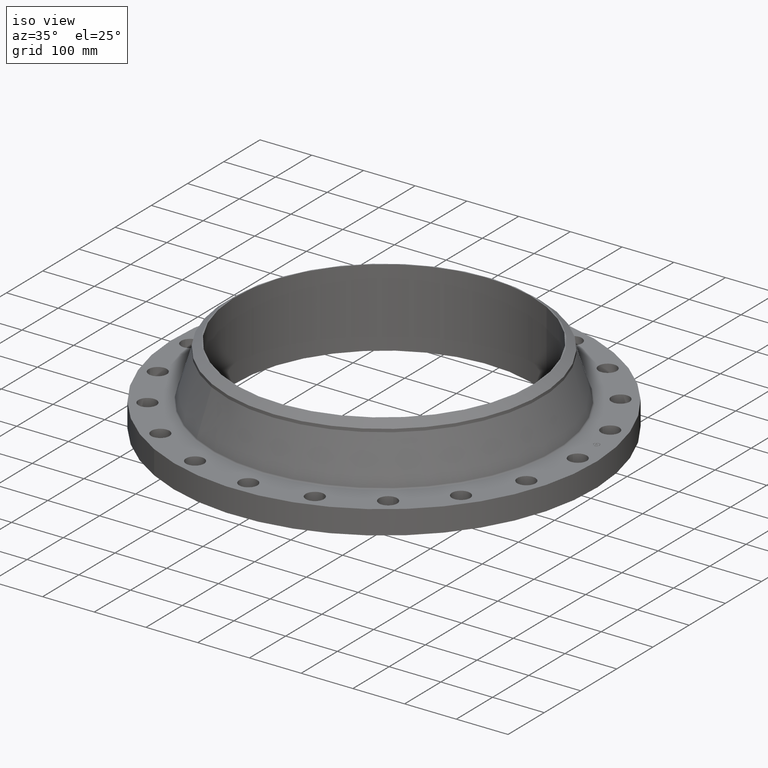
[diagram: clean part render]
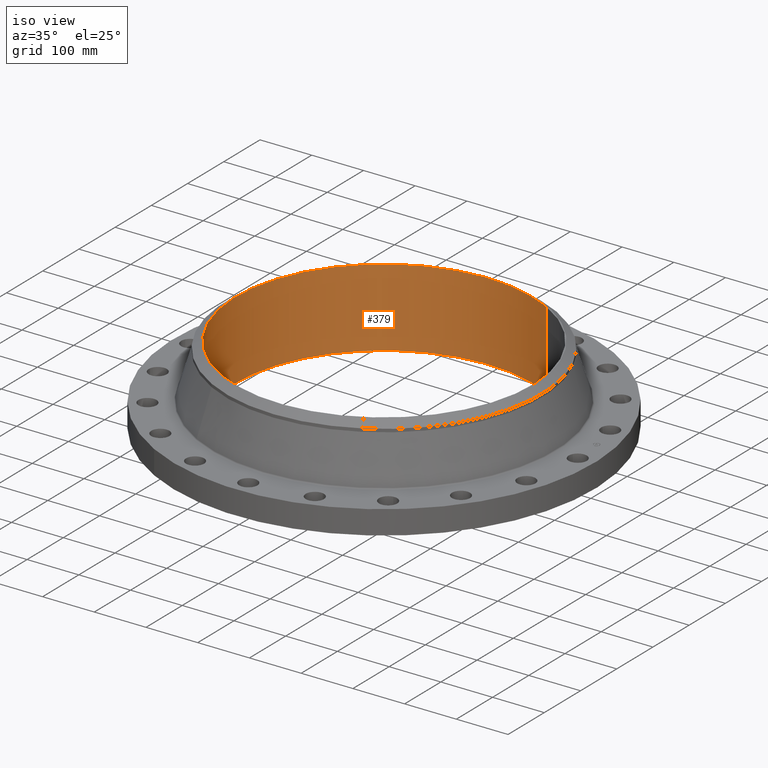
[diagram: tour spotlight — one face highlighted and labeled with its STEP entity id]
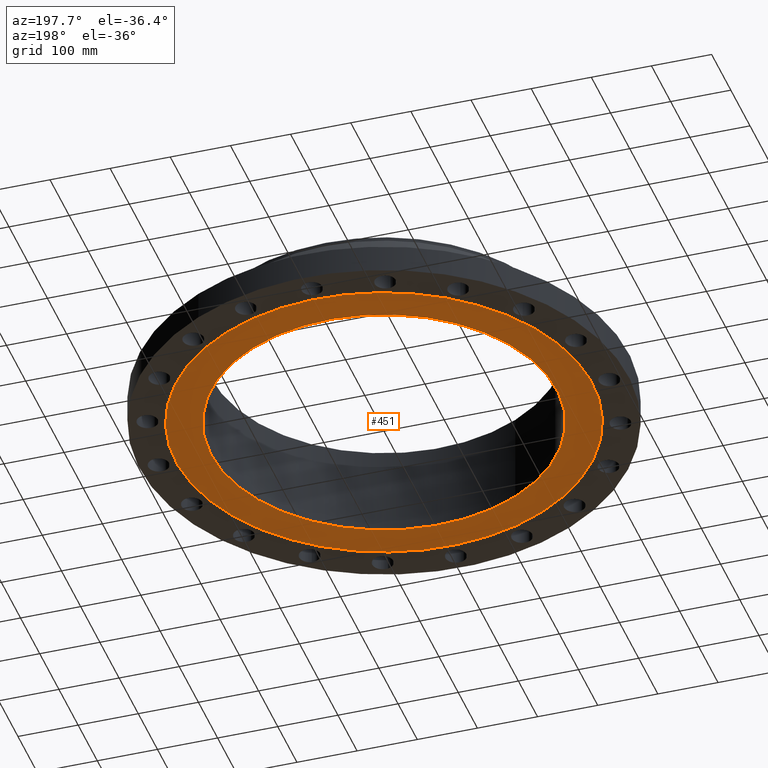
[diagram: tour spotlight — one face highlighted and labeled with its STEP entity id]
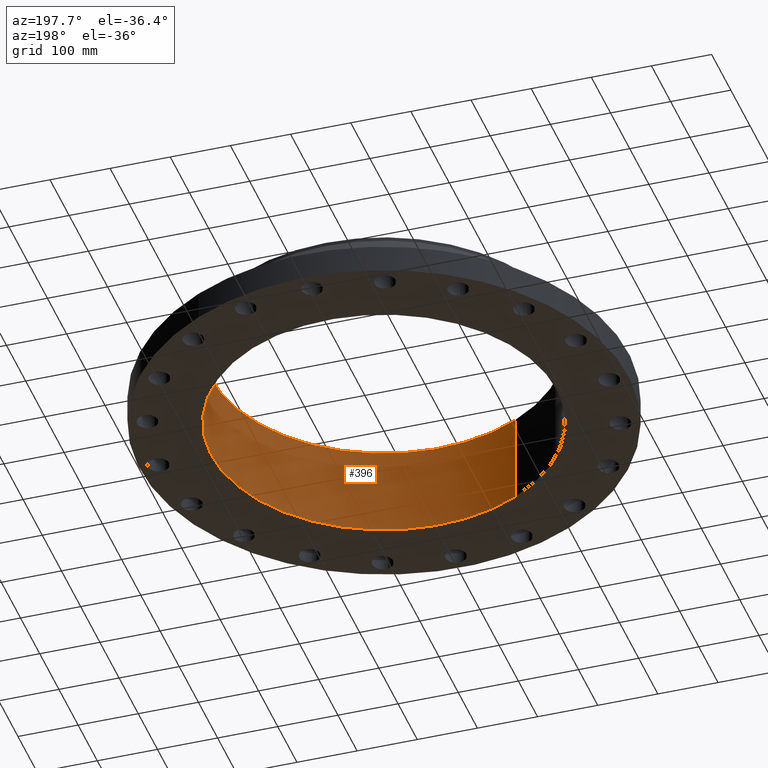
[diagram: tour spotlight — one face highlighted and labeled with its STEP entity id]
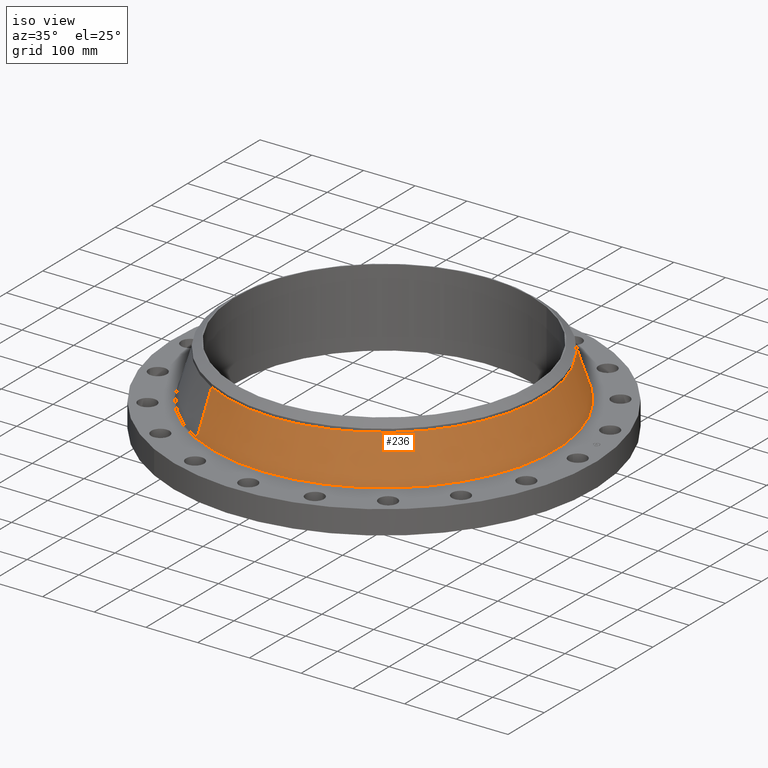
[diagram: tour spotlight — one face highlighted and labeled with its STEP entity id]
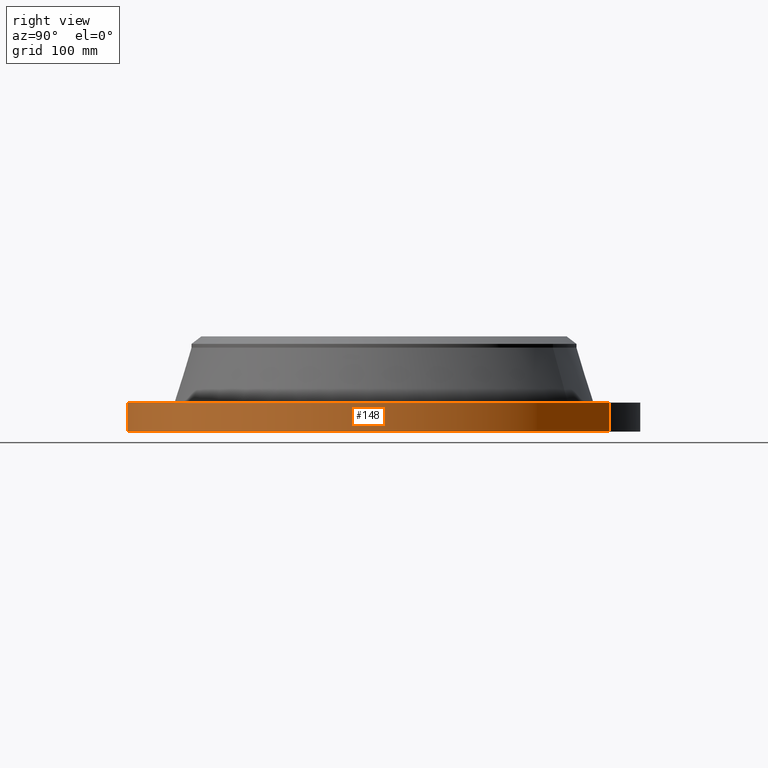
[diagram: tour spotlight — one face highlighted and labeled with its STEP entity id]
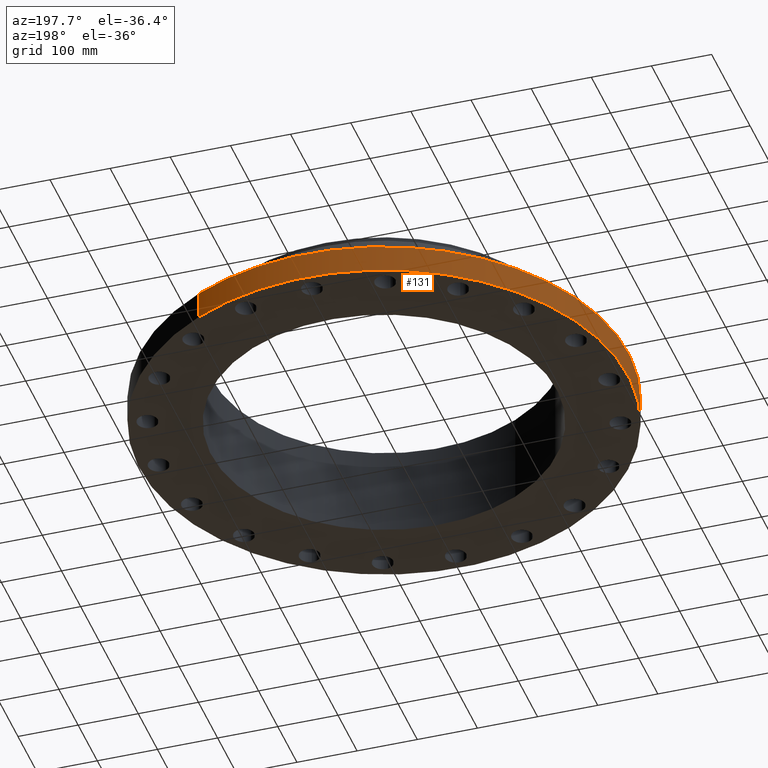
[diagram: tour spotlight — one face highlighted and labeled with its STEP entity id]
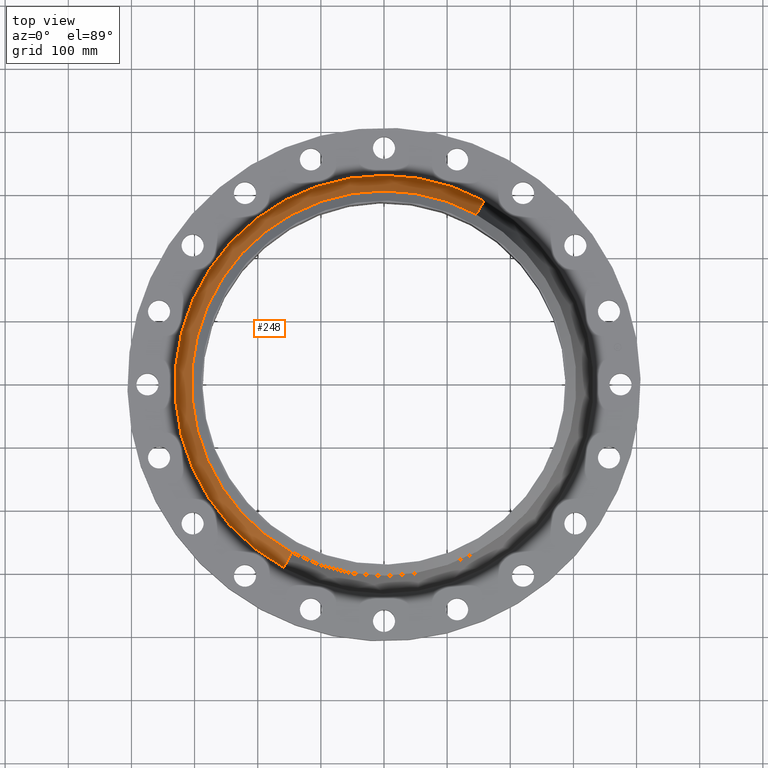
[diagram: tour spotlight — one face highlighted and labeled with its STEP entity id]
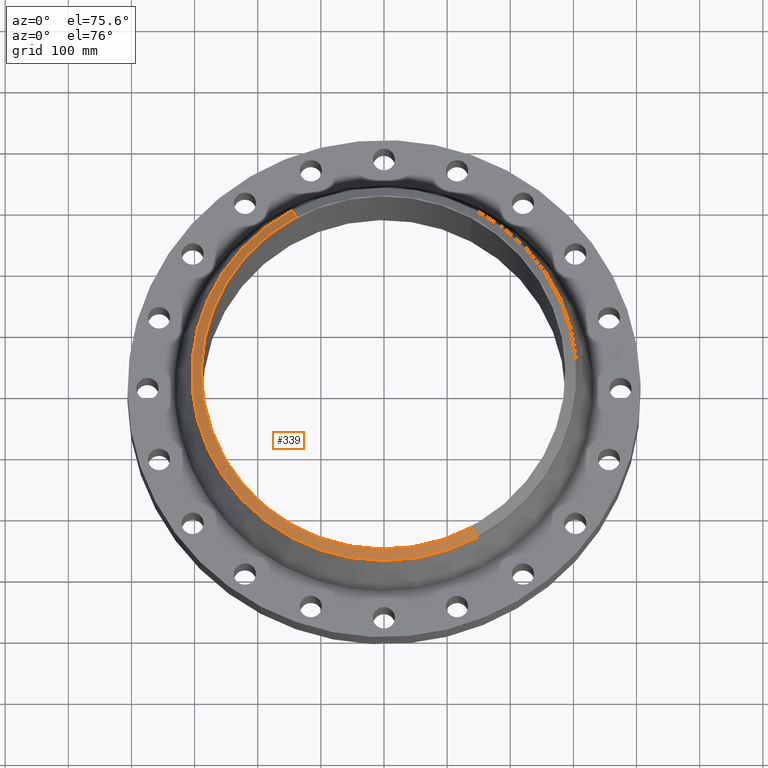
[diagram: tour spotlight — one face highlighted and labeled with its STEP entity id]
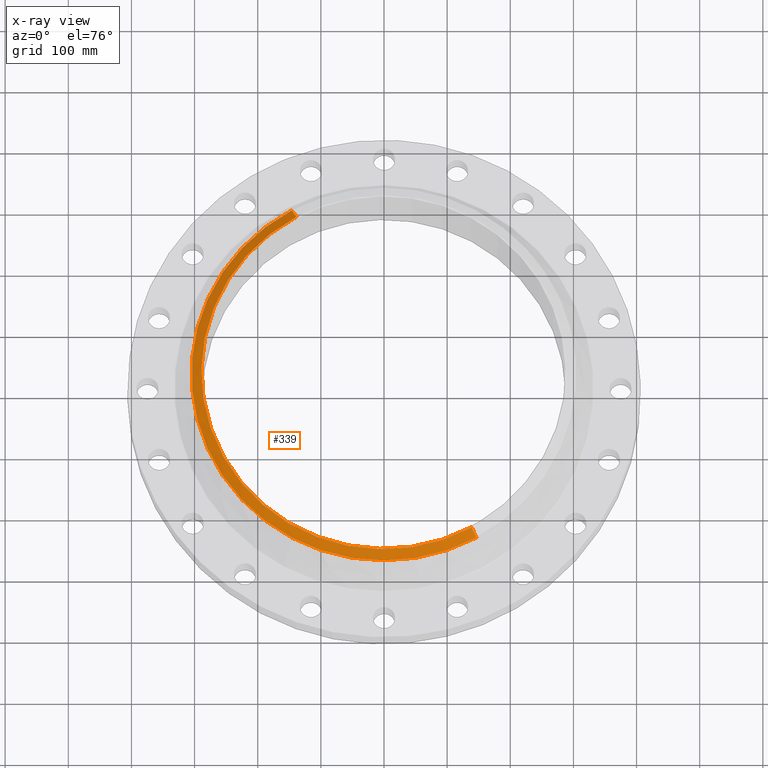
[diagram: x-ray of the same camera — body ghosted, this tour face saturated]
A machine part: a face-by-face anatomy tour. The part has 441 B-rep faces; the first image is the clean iso view, then the 8 largest visible faces are spotlighted one at a time (largest first), each with its STEP entity span.

Face 1 — iso view, entity #379. In plain terms, the highlighted cylindrical surface (partial cylindrical patch) has radius 287.325 mm, axis along (0, 0, -1).
Definition (entity closure, byte-faithful):
#343=AXIS2_PLACEMENT_3D('Cylinder Axis2P3D',#340,#341,#342) ;
#347=AXIS2_PLACEMENT_3D('Circle Axis2P3D',#345,#346,$) ;
#363=AXIS2_PLACEMENT_3D('Circle Axis2P3D',#361,#362,$) ;
#340=CARTESIAN_POINT('Axis2P3D Location',(0.,0.,2.97000000001)) ;
#345=CARTESIAN_POINT('Axis2P3D Location',(0.,0.,5.94000000002)) ;
#349=CARTESIAN_POINT('Vertex',(-5.42326169271,-9.92721394014,5.94000000002)) ;
#351=CARTESIAN_POINT('Vertex',(5.42326169271,9.92721394014,5.94000000002)) ;
#354=CARTESIAN_POINT('Line Origine',(-5.42326169271,-9.92721394014,2.97000000001)) ;
#358=CARTESIAN_POINT('Vertex',(-5.42326169271,-9.92721394014,-8.28034054272E-014)) ;
#361=CARTESIAN_POINT('Axis2P3D Location',(0.,0.,-8.28034054272E-014)) ;
#365=CARTESIAN_POINT('Vertex',(5.42326169271,9.92721394014,-8.28034054272E-014)) ;
#368=CARTESIAN_POINT('Line Origine',(5.42326169271,9.92721394014,2.97000000001)) ;
#341=DIRECTION('Axis2P3D Direction',(0.,0.,-0.0393700787402)) ;
#342=DIRECTION('Axis2P3D XDirection',(0.0188750212049,0.0345504945626,0.)) ;
#346=DIRECTION('Axis2P3D Direction',(0.,0.,-0.0393700787402)) ;
#355=DIRECTION('Vector Direction',(0.,0.,-0.0393700787402)) ;
#362=DIRECTION('Axis2P3D Direction',(0.,0.,-0.0393700787402)) ;
#369=DIRECTION('Vector Direction',(0.,0.,-0.0393700787402)) ;
#356=VECTOR('Line Direction',#355,0.0393700787402) ;
#370=VECTOR('Line Direction',#369,0.0393700787402) ;
#374=ORIENTED_EDGE('',*,*,#353,.F.) ;
#375=ORIENTED_EDGE('',*,*,#360,.T.) ;
#376=ORIENTED_EDGE('',*,*,#367,.T.) ;
#377=ORIENTED_EDGE('',*,*,#372,.F.) ;
#379=ADVANCED_FACE('PartBody',(#378),#344,.F.) ;
#348=CIRCLE('generated circle',#347,11.312) ;
#364=CIRCLE('generated circle',#363,11.312) ;
#344=CYLINDRICAL_SURFACE('generated cylinder',#343,11.312) ;
#353=EDGE_CURVE('',#350,#352,#348,.T.) ;
#360=EDGE_CURVE('',#350,#359,#357,.T.) ;
#367=EDGE_CURVE('',#359,#366,#364,.T.) ;
#372=EDGE_CURVE('',#352,#366,#371,.T.) ;
#373=EDGE_LOOP('',(#374,#375,#376,#377)) ;
#378=FACE_OUTER_BOUND('',#373,.T.) ;
#357=LINE('Line',#354,#356) ;
#371=LINE('Line',#368,#370) ;
#350=VERTEX_POINT('',#349) ;
#352=VERTEX_POINT('',#351) ;
#359=VERTEX_POINT('',#358) ;
#366=VERTEX_POINT('',#365) ;

Face 2 — auxiliary view, entity #451. In plain terms, the highlighted planar face has unit normal (0, 0, -1).
Definition (entity closure, byte-faithful):
#363=AXIS2_PLACEMENT_3D('Circle Axis2P3D',#361,#362,$) ;
#387=AXIS2_PLACEMENT_3D('Circle Axis2P3D',#385,#386,$) ;
#427=AXIS2_PLACEMENT_3D('Plane Axis2P3D',#424,#425,#426) ;
#431=AXIS2_PLACEMENT_3D('Circle Axis2P3D',#429,#430,$) ;
#440=AXIS2_PLACEMENT_3D('Circle Axis2P3D',#438,#439,$) ;
#358=CARTESIAN_POINT('Vertex',(-5.42326169271,-9.92721394014,-8.28034054272E-014)) ;
#361=CARTESIAN_POINT('Axis2P3D Location',(0.,0.,-8.28034054272E-014)) ;
#365=CARTESIAN_POINT('Vertex',(5.42326169271,9.92721394014,-8.28034054272E-014)) ;
#385=CARTESIAN_POINT('Axis2P3D Location',(0.,0.,-8.28034054272E-014)) ;
#424=CARTESIAN_POINT('Axis2P3D Location',(0.,11.312,0.)) ;
#429=CARTESIAN_POINT('Axis2P3D Location',(0.,0.,0.)) ;
#433=CARTESIAN_POINT('Vertex',(-6.53217296351,-11.9570624058,0.)) ;
#435=CARTESIAN_POINT('Vertex',(6.53217296351,11.9570624058,0.)) ;
#438=CARTESIAN_POINT('Axis2P3D Location',(0.,0.,0.)) ;
#362=DIRECTION('Axis2P3D Direction',(0.,0.,-0.0393700787402)) ;
#386=DIRECTION('Axis2P3D Direction',(0.,0.,-0.0393700787402)) ;
#425=DIRECTION('Axis2P3D Direction',(0.,0.,-0.0393700787402)) ;
#426=DIRECTION('Axis2P3D XDirection',(0.0393700787402,0.,0.)) ;
#430=DIRECTION('Axis2P3D Direction',(0.,0.,-0.0393700787402)) ;
#439=DIRECTION('Axis2P3D Direction',(0.,0.,-0.0393700787402)) ;
#444=ORIENTED_EDGE('',*,*,#437,.T.) ;
#445=ORIENTED_EDGE('',*,*,#442,.T.) ;
#448=ORIENTED_EDGE('',*,*,#389,.F.) ;
#449=ORIENTED_EDGE('',*,*,#367,.F.) ;
#450=FACE_BOUND('',#447,.T.) ;
#451=ADVANCED_FACE('PartBody',(#446,#450),#428,.T.) ;
#364=CIRCLE('generated circle',#363,11.312) ;
#388=CIRCLE('generated circle',#387,11.312) ;
#432=CIRCLE('generated circle',#431,13.6250000001) ;
#441=CIRCLE('generated circle',#440,13.6250000001) ;
#367=EDGE_CURVE('',#359,#366,#364,.T.) ;
#389=EDGE_CURVE('',#366,#359,#388,.T.) ;
#437=EDGE_CURVE('',#434,#436,#432,.T.) ;
#442=EDGE_CURVE('',#436,#434,#441,.T.) ;
#443=EDGE_LOOP('',(#444,#445)) ;
#447=EDGE_LOOP('',(#448,#449)) ;
#446=FACE_OUTER_BOUND('',#443,.T.) ;
#428=PLANE('',#427) ;
#359=VERTEX_POINT('',#358) ;
#366=VERTEX_POINT('',#365) ;
#434=VERTEX_POINT('',#433) ;
#436=VERTEX_POINT('',#435) ;

Face 3 — auxiliary view, entity #396. In plain terms, the highlighted cylindrical surface (partial cylindrical patch) has radius 287.325 mm, axis along (0, 0, -1).
Definition (entity closure, byte-faithful):
#343=AXIS2_PLACEMENT_3D('Cylinder Axis2P3D',#340,#341,#342) ;
#382=AXIS2_PLACEMENT_3D('Circle Axis2P3D',#380,#381,$) ;
#387=AXIS2_PLACEMENT_3D('Circle Axis2P3D',#385,#386,$) ;
#340=CARTESIAN_POINT('Axis2P3D Location',(0.,0.,2.97000000001)) ;
#349=CARTESIAN_POINT('Vertex',(-5.42326169271,-9.92721394014,5.94000000002)) ;
#351=CARTESIAN_POINT('Vertex',(5.42326169271,9.92721394014,5.94000000002)) ;
#354=CARTESIAN_POINT('Line Origine',(-5.42326169271,-9.92721394014,2.97000000001)) ;
#358=CARTESIAN_POINT('Vertex',(-5.42326169271,-9.92721394014,-8.28034054272E-014)) ;
#365=CARTESIAN_POINT('Vertex',(5.42326169271,9.92721394014,-8.28034054272E-014)) ;
#368=CARTESIAN_POINT('Line Origine',(5.42326169271,9.92721394014,2.97000000001)) ;
#380=CARTESIAN_POINT('Axis2P3D Location',(0.,0.,5.94000000002)) ;
#385=CARTESIAN_POINT('Axis2P3D Location',(0.,0.,-8.28034054272E-014)) ;
#341=DIRECTION('Axis2P3D Direction',(0.,0.,-0.0393700787402)) ;
#342=DIRECTION('Axis2P3D XDirection',(0.0188750212049,0.0345504945626,0.)) ;
#355=DIRECTION('Vector Direction',(0.,0.,-0.0393700787402)) ;
#369=DIRECTION('Vector Direction',(0.,0.,-0.0393700787402)) ;
#381=DIRECTION('Axis2P3D Direction',(0.,0.,-0.0393700787402)) ;
#386=DIRECTION('Axis2P3D Direction',(0.,0.,-0.0393700787402)) ;
#356=VECTOR('Line Direction',#355,0.0393700787402) ;
#370=VECTOR('Line Direction',#369,0.0393700787402) ;
#391=ORIENTED_EDGE('',*,*,#384,.F.) ;
#392=ORIENTED_EDGE('',*,*,#372,.T.) ;
#393=ORIENTED_EDGE('',*,*,#389,.T.) ;
#394=ORIENTED_EDGE('',*,*,#360,.F.) ;
#396=ADVANCED_FACE('PartBody',(#395),#344,.F.) ;
#383=CIRCLE('generated circle',#382,11.312) ;
#388=CIRCLE('generated circle',#387,11.312) ;
#344=CYLINDRICAL_SURFACE('generated cylinder',#343,11.312) ;
#360=EDGE_CURVE('',#350,#359,#357,.T.) ;
#372=EDGE_CURVE('',#352,#366,#371,.T.) ;
#384=EDGE_CURVE('',#352,#350,#383,.T.) ;
#389=EDGE_CURVE('',#366,#359,#388,.T.) ;
#390=EDGE_LOOP('',(#391,#392,#393,#394)) ;
#395=FACE_OUTER_BOUND('',#390,.T.) ;
#357=LINE('Line',#354,#356) ;
#371=LINE('Line',#368,#370) ;
#350=VERTEX_POINT('',#349) ;
#352=VERTEX_POINT('',#351) ;
#359=VERTEX_POINT('',#358) ;
#366=VERTEX_POINT('',#365) ;

Face 4 — iso view, entity #236. In plain terms, the highlighted conical surface has half-angle 17.191 deg.
Definition (entity closure, byte-faithful):
#172=AXIS2_PLACEMENT_3D('Circle Axis2P3D',#170,#171,$) ;
#209=AXIS2_PLACEMENT_3D('Cone Axis2P3D',#206,#207,#208) ;
#220=AXIS2_PLACEMENT_3D('Circle Axis2P3D',#218,#219,$) ;
#167=CARTESIAN_POINT('Vertex',(6.24875936472,11.438277293,1.89453366619)) ;
#170=CARTESIAN_POINT('Axis2P3D Location',(0.,0.,1.89453366619)) ;
#174=CARTESIAN_POINT('Vertex',(-6.24875936472,-11.438277293,1.89453366619)) ;
#206=CARTESIAN_POINT('Axis2P3D Location',(0.,0.,5.23627800772)) ;
#211=CARTESIAN_POINT('Line Origine',(6.00093291399,10.9846340179,3.56540583695)) ;
#215=CARTESIAN_POINT('Vertex',(5.75310646327,10.5309907427,5.23627800772)) ;
#218=CARTESIAN_POINT('Axis2P3D Location',(0.,0.,5.23627800772)) ;
#222=CARTESIAN_POINT('Vertex',(-5.75310646327,-10.5309907427,5.23627800772)) ;
#225=CARTESIAN_POINT('Line Origine',(-6.00093291399,-10.9846340179,3.56540583695)) ;
#171=DIRECTION('Axis2P3D Direction',(0.,0.,-0.0393700787402)) ;
#207=DIRECTION('Axis2P3D Direction',(0.,0.,-0.0393700787402)) ;
#208=DIRECTION('Axis2P3D XDirection',(-0.0188750212049,-0.0345504945626,0.)) ;
#212=DIRECTION('Vector Direction',(0.00557856502444,0.010211494782,-0.0376112760564)) ;
#219=DIRECTION('Axis2P3D Direction',(0.,0.,-0.0393700787402)) ;
#226=DIRECTION('Vector Direction',(-0.00557856502444,-0.010211494782,-0.0376112760564)) ;
#213=VECTOR('Line Direction',#212,0.0393700787402) ;
#227=VECTOR('Line Direction',#226,0.0393700787402) ;
#231=ORIENTED_EDGE('',*,*,#176,.F.) ;
#232=ORIENTED_EDGE('',*,*,#217,.T.) ;
#233=ORIENTED_EDGE('',*,*,#224,.T.) ;
#234=ORIENTED_EDGE('',*,*,#229,.F.) ;
#236=ADVANCED_FACE('PartBody',(#235),#210,.T.) ;
#173=CIRCLE('generated circle',#172,13.0338475145) ;
#221=CIRCLE('generated circle',#220,12.) ;
#210=CONICAL_SURFACE('Cone',#209,12.,0.300034098303) ;
#176=EDGE_CURVE('',#168,#175,#173,.T.) ;
#217=EDGE_CURVE('',#168,#216,#214,.F.) ;
#224=EDGE_CURVE('',#216,#223,#221,.T.) ;
#229=EDGE_CURVE('',#175,#223,#228,.F.) ;
#230=EDGE_LOOP('',(#231,#232,#233,#234)) ;
#235=FACE_OUTER_BOUND('',#230,.T.) ;
#214=LINE('Line',#211,#213) ;
#228=LINE('Line',#225,#227) ;
#168=VERTEX_POINT('',#167) ;
#175=VERTEX_POINT('',#174) ;
#216=VERTEX_POINT('',#215) ;
#223=VERTEX_POINT('',#222) ;

Face 5 — right view, entity #148. In plain terms, the highlighted cylindrical surface (partial cylindrical patch) has radius 406.4 mm, axis along (0, 0, -1).
Definition (entity closure, byte-faithful):
#95=AXIS2_PLACEMENT_3D('Cylinder Axis2P3D',#92,#93,#94) ;
#134=AXIS2_PLACEMENT_3D('Circle Axis2P3D',#132,#133,$) ;
#139=AXIS2_PLACEMENT_3D('Circle Axis2P3D',#137,#138,$) ;
#92=CARTESIAN_POINT('Axis2P3D Location',(0.,0.,2.97000000001)) ;
#101=CARTESIAN_POINT('Vertex',(-7.6708086177,-14.0413209903,1.1189649382E-015)) ;
#103=CARTESIAN_POINT('Vertex',(7.6708086177,14.0413209903,1.1189649382E-015)) ;
#106=CARTESIAN_POINT('Line Origine',(-7.6708086177,-14.0413209903,0.905000000004)) ;
#110=CARTESIAN_POINT('Vertex',(-7.6708086177,-14.0413209903,1.81000000001)) ;
#117=CARTESIAN_POINT('Vertex',(7.6708086177,14.0413209903,1.81000000001)) ;
#120=CARTESIAN_POINT('Line Origine',(7.6708086177,14.0413209903,0.905000000004)) ;
#132=CARTESIAN_POINT('Axis2P3D Location',(0.,0.,1.1189649382E-015)) ;
#137=CARTESIAN_POINT('Axis2P3D Location',(0.,0.,1.81000000001)) ;
#93=DIRECTION('Axis2P3D Direction',(0.,0.,-0.0393700787402)) ;
#94=DIRECTION('Axis2P3D XDirection',(0.0188750212049,0.0345504945626,0.)) ;
#107=DIRECTION('Vector Direction',(0.,0.,-0.0393700787402)) ;
#121=DIRECTION('Vector Direction',(0.,0.,-0.0393700787402)) ;
#133=DIRECTION('Axis2P3D Direction',(0.,0.,-0.0393700787402)) ;
#138=DIRECTION('Axis2P3D Direction',(0.,0.,-0.0393700787402)) ;
#108=VECTOR('Line Direction',#107,0.0393700787402) ;
#122=VECTOR('Line Direction',#121,0.0393700787402) ;
#143=ORIENTED_EDGE('',*,*,#136,.F.) ;
#144=ORIENTED_EDGE('',*,*,#124,.T.) ;
#145=ORIENTED_EDGE('',*,*,#141,.T.) ;
#146=ORIENTED_EDGE('',*,*,#112,.F.) ;
#148=ADVANCED_FACE('PartBody',(#147),#96,.T.) ;
#135=CIRCLE('generated circle',#134,16.0000000001) ;
#140=CIRCLE('generated circle',#139,16.0000000001) ;
#96=CYLINDRICAL_SURFACE('generated cylinder',#95,16.0000000001) ;
#112=EDGE_CURVE('',#102,#111,#109,.F.) ;
#124=EDGE_CURVE('',#104,#118,#123,.F.) ;
#136=EDGE_CURVE('',#104,#102,#135,.T.) ;
#141=EDGE_CURVE('',#118,#111,#140,.T.) ;
#142=EDGE_LOOP('',(#143,#144,#145,#146)) ;
#147=FACE_OUTER_BOUND('',#142,.T.) ;
#109=LINE('Line',#106,#108) ;
#123=LINE('Line',#120,#122) ;
#102=VERTEX_POINT('',#101) ;
#104=VERTEX_POINT('',#103) ;
#111=VERTEX_POINT('',#110) ;
#118=VERTEX_POINT('',#117) ;

Face 6 — auxiliary view, entity #131. In plain terms, the highlighted cylindrical surface (partial cylindrical patch) has radius 406.4 mm, axis along (0, 0, -1).
Definition (entity closure, byte-faithful):
#95=AXIS2_PLACEMENT_3D('Cylinder Axis2P3D',#92,#93,#94) ;
#99=AXIS2_PLACEMENT_3D('Circle Axis2P3D',#97,#98,$) ;
#115=AXIS2_PLACEMENT_3D('Circle Axis2P3D',#113,#114,$) ;
#92=CARTESIAN_POINT('Axis2P3D Location',(0.,0.,2.97000000001)) ;
#97=CARTESIAN_POINT('Axis2P3D Location',(0.,0.,1.1189649382E-015)) ;
#101=CARTESIAN_POINT('Vertex',(-7.6708086177,-14.0413209903,1.1189649382E-015)) ;
#103=CARTESIAN_POINT('Vertex',(7.6708086177,14.0413209903,1.1189649382E-015)) ;
#106=CARTESIAN_POINT('Line Origine',(-7.6708086177,-14.0413209903,0.905000000004)) ;
#110=CARTESIAN_POINT('Vertex',(-7.6708086177,-14.0413209903,1.81000000001)) ;
#113=CARTESIAN_POINT('Axis2P3D Location',(0.,0.,1.81000000001)) ;
#117=CARTESIAN_POINT('Vertex',(7.6708086177,14.0413209903,1.81000000001)) ;
#120=CARTESIAN_POINT('Line Origine',(7.6708086177,14.0413209903,0.905000000004)) ;
#93=DIRECTION('Axis2P3D Direction',(0.,0.,-0.0393700787402)) ;
#94=DIRECTION('Axis2P3D XDirection',(0.0188750212049,0.0345504945626,0.)) ;
#98=DIRECTION('Axis2P3D Direction',(0.,0.,-0.0393700787402)) ;
#107=DIRECTION('Vector Direction',(0.,0.,-0.0393700787402)) ;
#114=DIRECTION('Axis2P3D Direction',(0.,0.,-0.0393700787402)) ;
#121=DIRECTION('Vector Direction',(0.,0.,-0.0393700787402)) ;
#108=VECTOR('Line Direction',#107,0.0393700787402) ;
#122=VECTOR('Line Direction',#121,0.0393700787402) ;
#126=ORIENTED_EDGE('',*,*,#105,.F.) ;
#127=ORIENTED_EDGE('',*,*,#112,.T.) ;
#128=ORIENTED_EDGE('',*,*,#119,.T.) ;
#129=ORIENTED_EDGE('',*,*,#124,.F.) ;
#131=ADVANCED_FACE('PartBody',(#130),#96,.T.) ;
#100=CIRCLE('generated circle',#99,16.0000000001) ;
#116=CIRCLE('generated circle',#115,16.0000000001) ;
#96=CYLINDRICAL_SURFACE('generated cylinder',#95,16.0000000001) ;
#105=EDGE_CURVE('',#102,#104,#100,.T.) ;
#112=EDGE_CURVE('',#102,#111,#109,.F.) ;
#119=EDGE_CURVE('',#111,#118,#116,.T.) ;
#124=EDGE_CURVE('',#104,#118,#123,.F.) ;
#125=EDGE_LOOP('',(#126,#127,#128,#129)) ;
#130=FACE_OUTER_BOUND('',#125,.T.) ;
#109=LINE('Line',#106,#108) ;
#123=LINE('Line',#120,#122) ;
#102=VERTEX_POINT('',#101) ;
#104=VERTEX_POINT('',#103) ;
#111=VERTEX_POINT('',#110) ;
#118=VERTEX_POINT('',#117) ;

Face 7 — top view, entity #248. In plain terms, the highlighted conical surface has half-angle 17.191 deg.
Definition (entity closure, byte-faithful):
#196=AXIS2_PLACEMENT_3D('Circle Axis2P3D',#194,#195,$) ;
#209=AXIS2_PLACEMENT_3D('Cone Axis2P3D',#206,#207,#208) ;
#239=AXIS2_PLACEMENT_3D('Circle Axis2P3D',#237,#238,$) ;
#167=CARTESIAN_POINT('Vertex',(6.24875936472,11.438277293,1.89453366619)) ;
#174=CARTESIAN_POINT('Vertex',(-6.24875936472,-11.438277293,1.89453366619)) ;
#194=CARTESIAN_POINT('Axis2P3D Location',(0.,0.,1.89453366619)) ;
#206=CARTESIAN_POINT('Axis2P3D Location',(0.,0.,5.23627800772)) ;
#211=CARTESIAN_POINT('Line Origine',(6.00093291399,10.9846340179,3.56540583695)) ;
#215=CARTESIAN_POINT('Vertex',(5.75310646327,10.5309907427,5.23627800772)) ;
#222=CARTESIAN_POINT('Vertex',(-5.75310646327,-10.5309907427,5.23627800772)) ;
#225=CARTESIAN_POINT('Line Origine',(-6.00093291399,-10.9846340179,3.56540583695)) ;
#237=CARTESIAN_POINT('Axis2P3D Location',(0.,0.,5.23627800772)) ;
#195=DIRECTION('Axis2P3D Direction',(0.,0.,-0.0393700787402)) ;
#207=DIRECTION('Axis2P3D Direction',(0.,0.,-0.0393700787402)) ;
#208=DIRECTION('Axis2P3D XDirection',(-0.0188750212049,-0.0345504945626,0.)) ;
#212=DIRECTION('Vector Direction',(0.00557856502444,0.010211494782,-0.0376112760564)) ;
#226=DIRECTION('Vector Direction',(-0.00557856502444,-0.010211494782,-0.0376112760564)) ;
#238=DIRECTION('Axis2P3D Direction',(0.,0.,-0.0393700787402)) ;
#213=VECTOR('Line Direction',#212,0.0393700787402) ;
#227=VECTOR('Line Direction',#226,0.0393700787402) ;
#243=ORIENTED_EDGE('',*,*,#198,.F.) ;
#244=ORIENTED_EDGE('',*,*,#229,.T.) ;
#245=ORIENTED_EDGE('',*,*,#241,.T.) ;
#246=ORIENTED_EDGE('',*,*,#217,.F.) ;
#248=ADVANCED_FACE('PartBody',(#247),#210,.T.) ;
#197=CIRCLE('generated circle',#196,13.0338475145) ;
#240=CIRCLE('generated circle',#239,12.) ;
#210=CONICAL_SURFACE('Cone',#209,12.,0.300034098303) ;
#198=EDGE_CURVE('',#175,#168,#197,.T.) ;
#217=EDGE_CURVE('',#168,#216,#214,.F.) ;
#229=EDGE_CURVE('',#175,#223,#228,.F.) ;
#241=EDGE_CURVE('',#223,#216,#240,.T.) ;
#242=EDGE_LOOP('',(#243,#244,#245,#246)) ;
#247=FACE_OUTER_BOUND('',#242,.T.) ;
#214=LINE('Line',#211,#213) ;
#228=LINE('Line',#225,#227) ;
#168=VERTEX_POINT('',#167) ;
#175=VERTEX_POINT('',#174) ;
#216=VERTEX_POINT('',#215) ;
#223=VERTEX_POINT('',#222) ;

Face 8 — auxiliary view, entity #339. An x-ray twin of the same camera follows (body ghosted, this face saturated) — the face is partly hidden behind the body. In plain terms, the highlighted conical surface has half-angle 52.5 deg.
Definition (entity closure, byte-faithful):
#277=AXIS2_PLACEMENT_3D('Circle Axis2P3D',#275,#276,$) ;
#290=AXIS2_PLACEMENT_3D('Circle Axis2P3D',#288,#289,$) ;
#311=AXIS2_PLACEMENT_3D('Cone Axis2P3D',#308,#309,#310) ;
#322=AXIS2_PLACEMENT_3D('Circle Axis2P3D',#320,#321,$) ;
#258=CARTESIAN_POINT('Vertex',(-5.75310646327,-10.5309907427,5.47249848016)) ;
#272=CARTESIAN_POINT('Vertex',(5.75310646327,-10.5309907427,5.47249848016)) ;
#275=CARTESIAN_POINT('Axis2P3D Location',(0.,0.,5.47249848016)) ;
#288=CARTESIAN_POINT('Axis2P3D Location',(0.,0.,5.47249848016)) ;
#292=CARTESIAN_POINT('Vertex',(-5.75310646327,10.5309907427,5.47249848016)) ;
#308=CARTESIAN_POINT('Axis2P3D Location',(0.,0.,5.94000000002)) ;
#313=CARTESIAN_POINT('Line Origine',(5.6070590992,-10.263652836,5.70624924009)) ;
#317=CARTESIAN_POINT('Vertex',(5.46101173512,-9.99631492927,5.94000000002)) ;
#320=CARTESIAN_POINT('Axis2P3D Location',(0.,0.,5.94000000002)) ;
#324=CARTESIAN_POINT('Vertex',(-5.46101173512,9.99631492927,5.94000000002)) ;
#327=CARTESIAN_POINT('Line Origine',(-5.6070590992,10.263652836,5.70624924009)) ;
#276=DIRECTION('Axis2P3D Direction',(0.,0.,-0.0393700787402)) ;
#289=DIRECTION('Axis2P3D Direction',(0.,0.,-0.0393700787402)) ;
#309=DIRECTION('Axis2P3D Direction',(-0.,-0.,-0.0393700787402)) ;
#310=DIRECTION('Axis2P3D XDirection',(-0.0188750212049,0.0345504945626,0.)) ;
#314=DIRECTION('Vector Direction',(0.014974561121,-0.02741075027,-0.023966985394)) ;
#321=DIRECTION('Axis2P3D Direction',(0.,0.,-0.0393700787402)) ;
#328=DIRECTION('Vector Direction',(-0.014974561121,0.02741075027,-0.023966985394)) ;
#315=VECTOR('Line Direction',#314,0.0393700787402) ;
#329=VECTOR('Line Direction',#328,0.0393700787402) ;
#333=ORIENTED_EDGE('',*,*,#319,.F.) ;
#334=ORIENTED_EDGE('',*,*,#326,.F.) ;
#335=ORIENTED_EDGE('',*,*,#331,.T.) ;
#336=ORIENTED_EDGE('',*,*,#294,.T.) ;
#337=ORIENTED_EDGE('',*,*,#279,.F.) ;
#339=ADVANCED_FACE('PartBody',(#338),#312,.T.) ;
#278=CIRCLE('generated circle',#277,12.) ;
#291=CIRCLE('generated circle',#290,12.) ;
#323=CIRCLE('generated circle',#322,11.3907401575) ;
#312=CONICAL_SURFACE('Cone',#311,11.3907401575,0.916297857297) ;
#279=EDGE_CURVE('',#273,#259,#278,.T.) ;
#294=EDGE_CURVE('',#293,#259,#291,.F.) ;
#319=EDGE_CURVE('',#318,#273,#316,.T.) ;
#326=EDGE_CURVE('',#325,#318,#323,.F.) ;
#331=EDGE_CURVE('',#325,#293,#330,.T.) ;
#332=EDGE_LOOP('',(#333,#334,#335,#336,#337)) ;
#338=FACE_OUTER_BOUND('',#332,.T.) ;
#316=LINE('Line',#313,#315) ;
#330=LINE('Line',#327,#329) ;
#259=VERTEX_POINT('',#258) ;
#273=VERTEX_POINT('',#272) ;
#293=VERTEX_POINT('',#292) ;
#318=VERTEX_POINT('',#317) ;
#325=VERTEX_POINT('',#324) ;